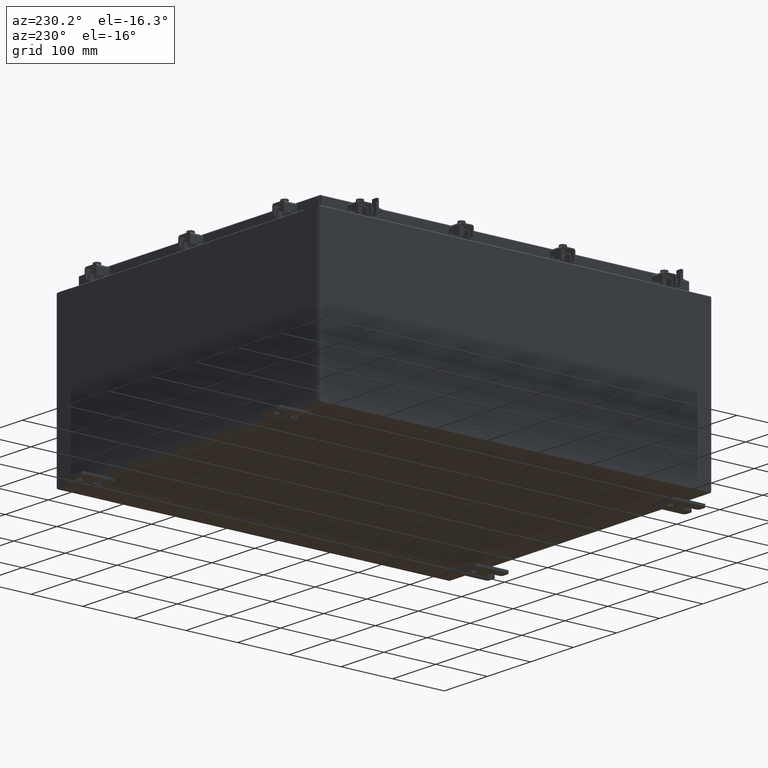
[diagram: clean part render]
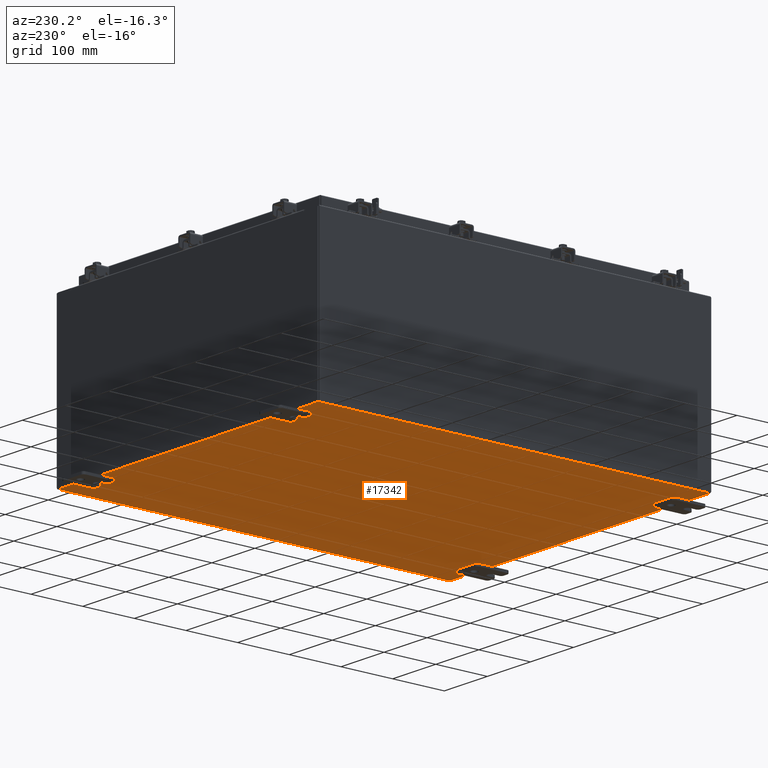
[diagram: same view with one face highlighted and labeled with its STEP entity id]
A machine part, auxiliary view. The second image highlights one B-rep face of the part: STEP entity #17342.
In plain terms, the highlighted planar face has unit normal (0, 0, -1).
Its self-contained STEP definition (entity closure, byte-faithful):
#1069 = LINE ( 'NONE', #6123, #20095 ) ;
#1556 = CARTESIAN_POINT ( 'NONE',  ( -11.91230000000000500, -14.92530000000000000, -0.07469999999999994700 ) ) ;
#1692 = DIRECTION ( 'NONE',  ( -1.000000000000000000, -0.0000000000000000000, -0.0000000000000000000 ) ) ;
#3367 = DIRECTION ( 'NONE',  ( -0.0000000000000000000, 1.000000000000000000, -0.0000000000000000000 ) ) ;
#3508 = CARTESIAN_POINT ( 'NONE',  ( -12.00000000000000500, 14.92530000000000000, -0.07470000000000000300 ) ) ;
#3534 = CARTESIAN_POINT ( 'NONE',  ( 11.91229999999999700, 14.92530000000000000, -0.07470000000000226500 ) ) ;
#3638 = ORIENTED_EDGE ( 'NONE', *, *, #22889, .F. ) ;
#3927 = PLANE ( 'NONE',  #13142 ) ;
#4020 = LINE ( 'NONE', #3508, #13066 ) ;
#5536 = LINE ( 'NONE', #1556, #14582 ) ;
#5955 = VERTEX_POINT ( 'NONE', #21903 ) ;
#6123 = CARTESIAN_POINT ( 'NONE',  ( -12.00000000000000500, -14.92530000000000000, -0.07470000000000000300 ) ) ;
#7551 = DIRECTION ( 'NONE',  ( 0.0000000000000000000, 0.0000000000000000000, -1.000000000000000000 ) ) ;
#7936 = VERTEX_POINT ( 'NONE', #22606 ) ;
#7937 = DIRECTION ( 'NONE',  ( 1.000000000000000000, 0.0000000000000000000, 0.0000000000000000000 ) ) ;
#10848 = CARTESIAN_POINT ( 'NONE',  ( -11.91230000000000500, 14.92530000000000000, -0.07470000000000000300 ) ) ;
#11377 = EDGE_CURVE ( 'NONE', #5955, #21371, #21986, .T. ) ;
#11486 = EDGE_CURVE ( 'NONE', #7936, #22939, #5536, .T. ) ;
#13066 = VECTOR ( 'NONE', #1692, 39.37007874015748100 ) ;
#13142 = AXIS2_PLACEMENT_3D ( 'NONE', #16499, #7551, #20014 ) ;
#13997 = CARTESIAN_POINT ( 'NONE',  ( 11.91229999999998800, -14.92530000000000000, -0.07470000000000000300 ) ) ;
#14582 = VECTOR ( 'NONE', #3367, 39.37007874015748100 ) ;
#16499 = CARTESIAN_POINT ( 'NONE',  ( 0.0000000000000000000, 0.0000000000000000000, -0.07470000000000000300 ) ) ;
#17342 = ADVANCED_FACE ( 'NONE', ( #18807 ), #3927, .T. ) ;
#17878 = DIRECTION ( 'NONE',  ( -0.0000000000000000000, -1.000000000000000000, 8.208677865577646300E-017 ) ) ;
#17890 = EDGE_LOOP ( 'NONE', ( #22067, #21415, #3638, #20843 ) ) ;
#18807 = FACE_OUTER_BOUND ( 'NONE', #17890, .T. ) ;
#19081 = EDGE_CURVE ( 'NONE', #7936, #21371, #1069, .T. ) ;
#20014 = DIRECTION ( 'NONE',  ( -1.000000000000000000, 0.0000000000000000000, -0.0000000000000000000 ) ) ;
#20095 = VECTOR ( 'NONE', #7937, 39.37007874015748100 ) ;
#20843 = ORIENTED_EDGE ( 'NONE', *, *, #11377, .T. ) ;
#21371 = VERTEX_POINT ( 'NONE', #13997 ) ;
#21415 = ORIENTED_EDGE ( 'NONE', *, *, #11486, .T. ) ;
#21435 = VECTOR ( 'NONE', #17878, 39.37007874015748100 ) ;
#21903 = CARTESIAN_POINT ( 'NONE',  ( 11.91229999999999700, 14.92530000000000000, -0.07470000000000226500 ) ) ;
#21986 = LINE ( 'NONE', #3534, #21435 ) ;
#22067 = ORIENTED_EDGE ( 'NONE', *, *, #19081, .F. ) ;
#22606 = CARTESIAN_POINT ( 'NONE',  ( -11.91230000000000500, -14.92530000000000000, -0.07469999999999994700 ) ) ;
#22889 = EDGE_CURVE ( 'NONE', #5955, #22939, #4020, .T. ) ;
#22939 = VERTEX_POINT ( 'NONE', #10848 ) ;